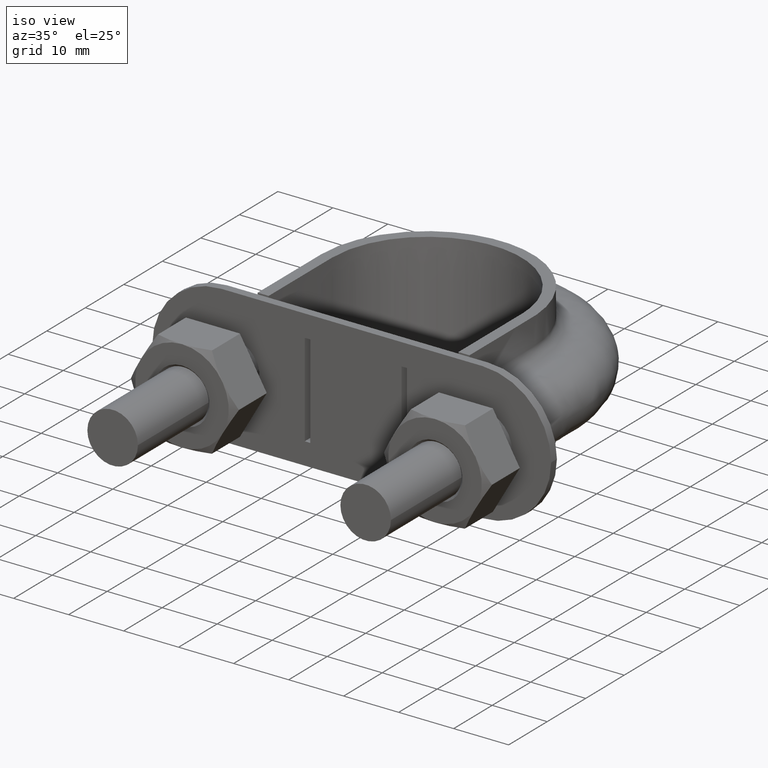
[diagram: clean part render]
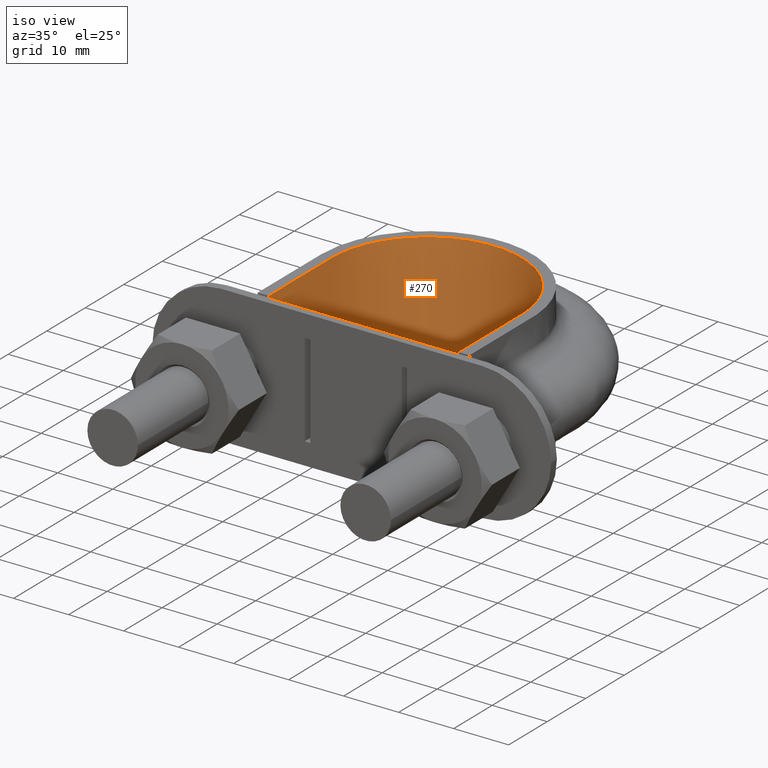
[diagram: same view with one face highlighted and labeled with its STEP entity id]
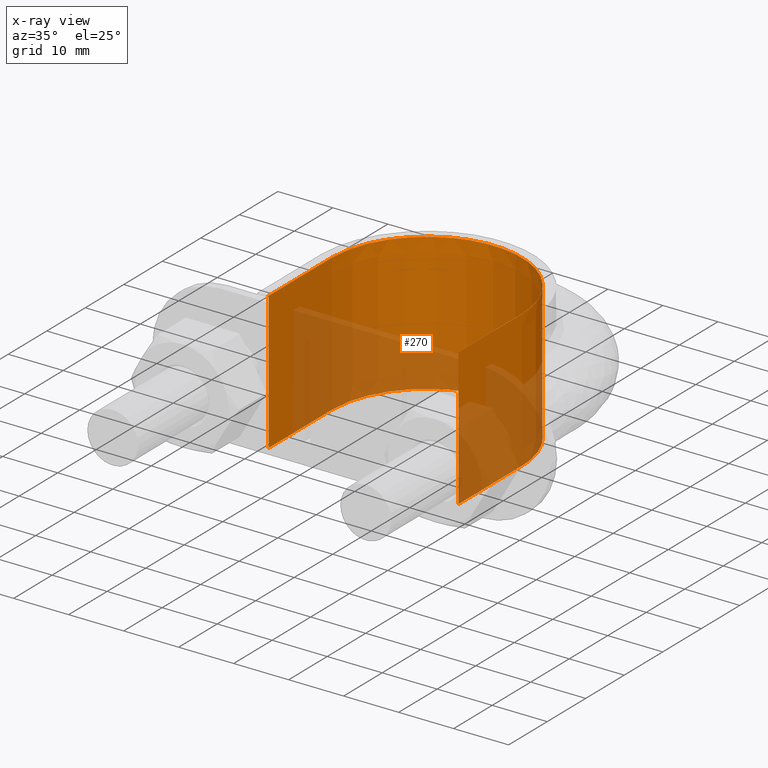
[diagram: x-ray of the same camera — body ghosted, the highlighted face saturated]
A machine part, iso view. The second image highlights one B-rep face of the part: STEP entity #270.
The next image is the same camera in x-ray: the body ghosted, the highlighted face saturated — about 41% of this face is hidden behind the body in this view.
In plain terms, the highlighted face is a SurfaceOfExtrusion surface.
Its self-contained STEP definition (entity closure, byte-faithful):
#270 = ADVANCED_FACE( '', ( #389 ), #390, .T. );
#389 = FACE_OUTER_BOUND( '', #646, .T. );
#390 = SURFACE_OF_LINEAR_EXTRUSION( '', #647, #648 );
#646 = EDGE_LOOP( '', ( #1743, #1744, #1745, #1746 ) );
#647 = B_SPLINE_CURVE_WITH_KNOTS( '', 3, ( #1747, #1748, #1749, #1750, #1751, #1752, #1753, #1754, #1755, #1756, #1757, #1758, #1759, #1760, #1761, #1762, #1763 ), .UNSPECIFIED., .F., .F., ( 4, 3, 1, 1, 1, 1, 1, 1, 1, 3, 4 ), ( 0.138743455497382, 1.00000000000000, 1.50000000000000, 2.00000000000000, 3.00000000000000, 4.00000000000000, 5.00000000000000, 6.00000000000000, 6.50000000000000, 7.00000000000000, 7.86125654450262 ), .UNSPECIFIED. );
#648 = VECTOR( '', #1764, 1000.00000000000 );
#1743 = ORIENTED_EDGE( '', *, *, #2557, .F. );
#1744 = ORIENTED_EDGE( '', *, *, #2546, .F. );
#1745 = ORIENTED_EDGE( '', *, *, #2550, .T. );
#1746 = ORIENTED_EDGE( '', *, *, #2554, .T. );
#1747 = CARTESIAN_POINT( '', ( -17.2500000000000, 32.3000000000000, -69.9996733561149 ) );
#1748 = CARTESIAN_POINT( '', ( -17.2500000000000, 37.7833333333333, -69.9996733561149 ) );
#1749 = CARTESIAN_POINT( '', ( -17.2500000000000, 43.2666666666667, -69.9996733561149 ) );
#1750 = CARTESIAN_POINT( '', ( -17.2500000000000, 48.7500000000000, -69.9996733561149 ) );
#1751 = CARTESIAN_POINT( '', ( -17.2500000000000, 50.2426934616576, -69.9996733561149 ) );
#1752 = CARTESIAN_POINT( '', ( -16.8447140772576, 53.2689573264767, -69.9996733561149 ) );
#1753 = CARTESIAN_POINT( '', ( -14.5369669940350, 58.8768798182963, -69.9996733561149 ) );
#1754 = CARTESIAN_POINT( '', ( -9.02779989662052, 64.3882950029496, -69.9996733561149 ) );
#1755 = CARTESIAN_POINT( '', ( 8.18108714422145E-015, 66.8058524985252, -69.9996733561149 ) );
#1756 = CARTESIAN_POINT( '', ( 9.02779989662053, 64.3882950029496, -69.9996733561149 ) );
#1757 = CARTESIAN_POINT( '', ( 14.5369669940350, 58.8768798182963, -69.9996733561149 ) );
#1758 = CARTESIAN_POINT( '', ( 16.8447140772576, 53.2689573264767, -69.9996733561149 ) );
#1759 = CARTESIAN_POINT( '', ( 17.2500000000000, 50.2426934616576, -69.9996733561149 ) );
#1760 = CARTESIAN_POINT( '', ( 17.2500000000000, 48.7500000000000, -69.9996733561149 ) );
#1761 = CARTESIAN_POINT( '', ( 17.2500000000000, 43.2666666666667, -69.9996733561149 ) );
#1762 = CARTESIAN_POINT( '', ( 17.2500000000000, 37.7833333333333, -69.9996733561149 ) );
#1763 = CARTESIAN_POINT( '', ( 17.2500000000000, 32.3000000000000, -69.9996733561149 ) );
#1764 = DIRECTION( '', ( 0.000000000000000, 0.000000000000000, 1.00000000000000 ) );
#2546 = EDGE_CURVE( '', #2787, #2788, #2789, .T. );
#2550 = EDGE_CURVE( '', #2787, #2795, #2796, .T. );
#2554 = EDGE_CURVE( '', #2795, #2802, #2803, .T. );
#2557 = EDGE_CURVE( '', #2788, #2802, #2807, .T. );
#2787 = VERTEX_POINT( '', #3194 );
#2788 = VERTEX_POINT( '', #3195 );
#2789 = LINE( '', #3196, #3197 );
#2795 = VERTEX_POINT( '', #3235 );
#2796 = B_SPLINE_CURVE_WITH_KNOTS( '', 3, ( #3236, #3237, #3238, #3239, #3240, #3241, #3242, #3243, #3244, #3245, #3246, #3247, #3248, #3249, #3250, #3251, #3252 ), .UNSPECIFIED., .F., .F., ( 4, 3, 1, 1, 1, 1, 1, 1, 1, 3, 4 ), ( 0.138743455497382, 1.00000000000000, 1.50000000000000, 2.00000000000000, 3.00000000000000, 4.00000000000000, 5.00000000000000, 6.00000000000000, 6.50000000000000, 7.00000000000000, 7.86125654450262 ), .UNSPECIFIED. );
#2802 = VERTEX_POINT( '', #3284 );
#2803 = LINE( '', #3285, #3286 );
#2807 = B_SPLINE_CURVE_WITH_KNOTS( '', 3, ( #3321, #3322, #3323, #3324, #3325, #3326, #3327, #3328, #3329, #3330, #3331, #3332, #3333, #3334, #3335, #3336, #3337 ), .UNSPECIFIED., .F., .F., ( 4, 3, 1, 1, 1, 1, 1, 1, 1, 3, 4 ), ( 0.138743455497382, 1.00000000000000, 1.50000000000000, 2.00000000000000, 3.00000000000000, 4.00000000000000, 5.00000000000000, 6.00000000000000, 6.50000000000000, 7.00000000000000, 7.86125654450262 ), .UNSPECIFIED. );
#3194 = CARTESIAN_POINT( '', ( -17.2500000000000, 32.3000000000000, -12.5000000000000 ) );
#3195 = CARTESIAN_POINT( '', ( -17.2500000000000, 32.3000000000000, 12.5000000000000 ) );
#3196 = CARTESIAN_POINT( '', ( -17.2500000000000, 32.3000000000000, -69.9996733561149 ) );
#3197 = VECTOR( '', #4015, 1000.00000000000 );
#3235 = CARTESIAN_POINT( '', ( 17.2500000000000, 32.3000000000000, -12.5000000000000 ) );
#3236 = CARTESIAN_POINT( '', ( -17.2500000000000, 32.3000000000000, -12.5000000000000 ) );
#3237 = CARTESIAN_POINT( '', ( -17.2500000000000, 37.7833333333333, -12.5000000000000 ) );
#3238 = CARTESIAN_POINT( '', ( -17.2500000000000, 43.2666666666667, -12.5000000000000 ) );
#3239 = CARTESIAN_POINT( '', ( -17.2500000000000, 48.7500000000000, -12.5000000000000 ) );
#3240 = CARTESIAN_POINT( '', ( -17.2500000000000, 50.2426934616576, -12.5000000000000 ) );
#3241 = CARTESIAN_POINT( '', ( -16.8447140772576, 53.2689573264767, -12.5000000000000 ) );
#3242 = CARTESIAN_POINT( '', ( -14.5369669940350, 58.8768798182963, -12.5000000000000 ) );
#3243 = CARTESIAN_POINT( '', ( -9.02779989662052, 64.3882950029496, -12.5000000000000 ) );
#3244 = CARTESIAN_POINT( '', ( 8.18108714422145E-015, 66.8058524985252, -12.5000000000000 ) );
#3245 = CARTESIAN_POINT( '', ( 9.02779989662053, 64.3882950029496, -12.5000000000000 ) );
#3246 = CARTESIAN_POINT( '', ( 14.5369669940350, 58.8768798182963, -12.5000000000000 ) );
#3247 = CARTESIAN_POINT( '', ( 16.8447140772576, 53.2689573264767, -12.5000000000000 ) );
#3248 = CARTESIAN_POINT( '', ( 17.2500000000000, 50.2426934616576, -12.5000000000000 ) );
#3249 = CARTESIAN_POINT( '', ( 17.2500000000000, 48.7500000000000, -12.5000000000000 ) );
#3250 = CARTESIAN_POINT( '', ( 17.2500000000000, 43.2666666666667, -12.5000000000000 ) );
#3251 = CARTESIAN_POINT( '', ( 17.2500000000000, 37.7833333333333, -12.5000000000000 ) );
#3252 = CARTESIAN_POINT( '', ( 17.2500000000000, 32.3000000000000, -12.5000000000000 ) );
#3284 = CARTESIAN_POINT( '', ( 17.2500000000000, 32.3000000000000, 12.5000000000000 ) );
#3285 = CARTESIAN_POINT( '', ( 17.2500000000000, 32.3000000000000, -69.9996733561149 ) );
#3286 = VECTOR( '', #4019, 1000.00000000000 );
#3321 = CARTESIAN_POINT( '', ( -17.2500000000000, 32.3000000000000, 12.5000000000000 ) );
#3322 = CARTESIAN_POINT( '', ( -17.2500000000000, 37.7833333333333, 12.5000000000000 ) );
#3323 = CARTESIAN_POINT( '', ( -17.2500000000000, 43.2666666666667, 12.5000000000000 ) );
#3324 = CARTESIAN_POINT( '', ( -17.2500000000000, 48.7500000000000, 12.5000000000000 ) );
#3325 = CARTESIAN_POINT( '', ( -17.2500000000000, 50.2426934616576, 12.5000000000000 ) );
#3326 = CARTESIAN_POINT( '', ( -16.8447140772576, 53.2689573264767, 12.5000000000000 ) );
#3327 = CARTESIAN_POINT( '', ( -14.5369669940350, 58.8768798182963, 12.5000000000000 ) );
#3328 = CARTESIAN_POINT( '', ( -9.02779989662052, 64.3882950029496, 12.5000000000000 ) );
#3329 = CARTESIAN_POINT( '', ( 8.18108714422145E-015, 66.8058524985252, 12.5000000000000 ) );
#3330 = CARTESIAN_POINT( '', ( 9.02779989662053, 64.3882950029496, 12.5000000000000 ) );
#3331 = CARTESIAN_POINT( '', ( 14.5369669940350, 58.8768798182963, 12.5000000000000 ) );
#3332 = CARTESIAN_POINT( '', ( 16.8447140772576, 53.2689573264767, 12.5000000000000 ) );
#3333 = CARTESIAN_POINT( '', ( 17.2500000000000, 50.2426934616576, 12.5000000000000 ) );
#3334 = CARTESIAN_POINT( '', ( 17.2500000000000, 48.7500000000000, 12.5000000000000 ) );
#3335 = CARTESIAN_POINT( '', ( 17.2500000000000, 43.2666666666667, 12.5000000000000 ) );
#3336 = CARTESIAN_POINT( '', ( 17.2500000000000, 37.7833333333333, 12.5000000000000 ) );
#3337 = CARTESIAN_POINT( '', ( 17.2500000000000, 32.3000000000000, 12.5000000000000 ) );
#4015 = DIRECTION( '', ( 0.000000000000000, 0.000000000000000, 1.00000000000000 ) );
#4019 = DIRECTION( '', ( 0.000000000000000, 0.000000000000000, 1.00000000000000 ) );